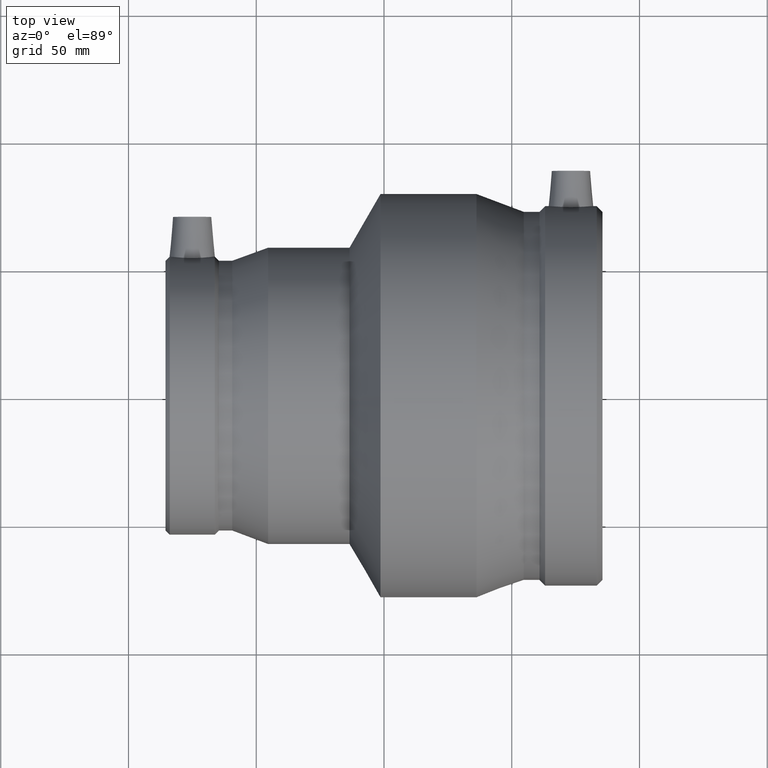
[diagram: clean part render]
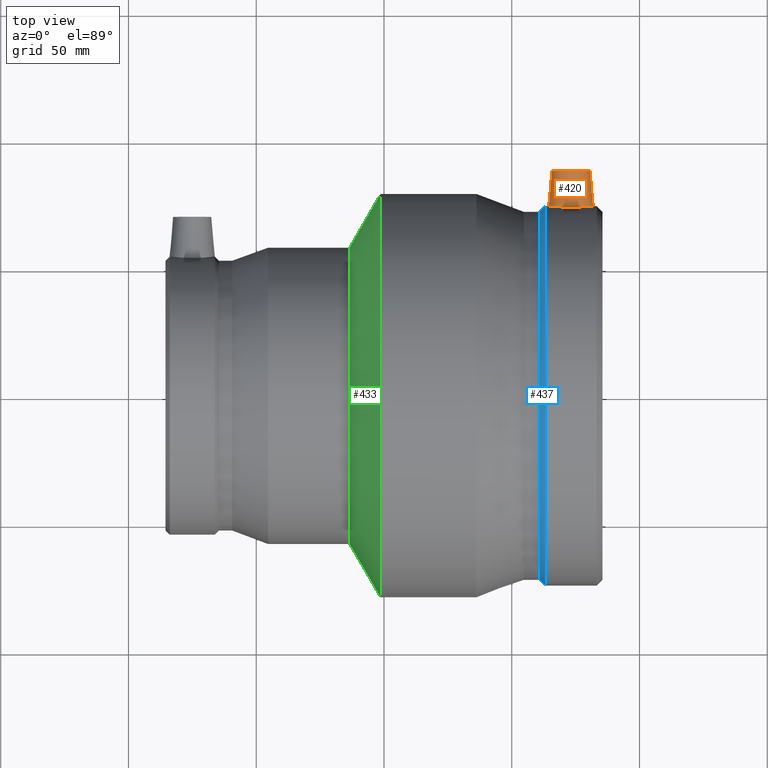
[diagram: same view with three faces highlighted in distinct colors, each labeled with its STEP entity id]
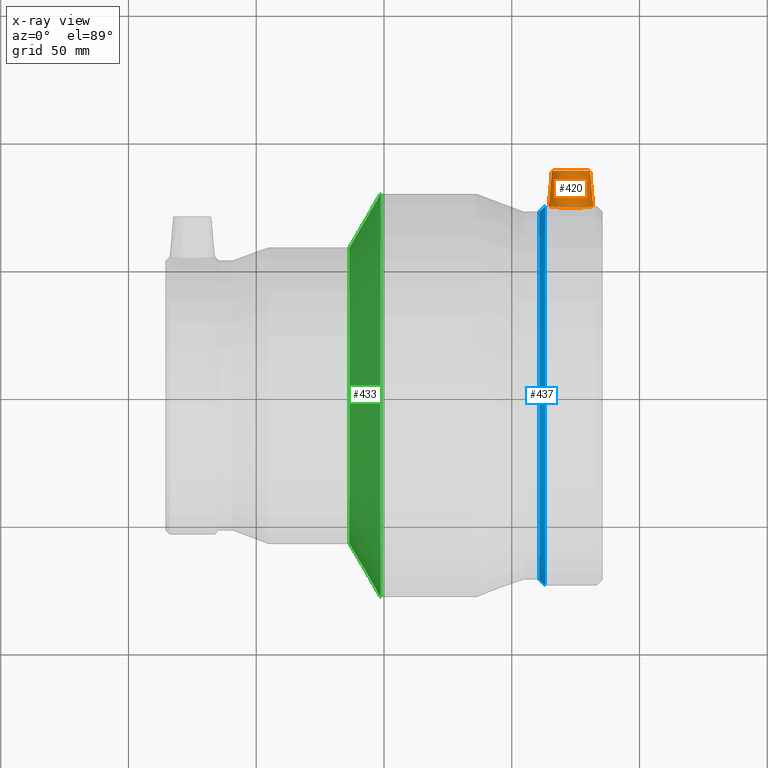
[diagram: x-ray of the same camera — body ghosted, the three highlighted faces saturated]
A machine part, top view with three faces highlighted in distinct colors.
The next image is the same camera in x-ray (body ghosted, the three faces saturated) — at least one of them is partly hidden behind the body in this view.
Their STEP definitions:

[orange] entity #420 — the highlighted conical surface has half-angle 5 deg.
#15=B_SPLINE_CURVE_WITH_KNOTS('',3,(#706,#707,#708,#709,#710,#711,#712,
#713,#714,#715,#716,#717,#718,#719,#720,#721,#722,#723,#724,#725,#726,#727,
#728,#729,#730,#731,#732,#733,#734,#735,#736,#737,#738,#739),
 .UNSPECIFIED.,.T.,.F.,(4,2,2,2,2,2,2,2,2,2,2,2,2,2,2,2,4),(0.,0.329174991896132,
0.658349983792263,0.987130054518636,1.31591012524501,1.64469019597138,1.97347026669776,
2.30264525859389,2.63182025049002,2.96099524238615,3.29017023428228,3.61895030500865,
3.94773037573503,4.2765104464614,4.60529051718777,4.93446550908391,5.26364050098004),
 .UNSPECIFIED.);
#20=CONICAL_SURFACE('',#467,7.5,5.);
#36=FACE_BOUND('',#134,.T.);
#90=FACE_OUTER_BOUND('',#133,.T.);
#133=EDGE_LOOP('',(#328));
#134=EDGE_LOOP('',(#329));
#204=CIRCLE('',#466,7.5);
#241=VERTEX_POINT('',#702);
#242=VERTEX_POINT('',#705);
#281=EDGE_CURVE('',#241,#241,#204,.T.);
#282=EDGE_CURVE('',#242,#242,#15,.T.);
#328=ORIENTED_EDGE('',*,*,#281,.T.);
#329=ORIENTED_EDGE('',*,*,#282,.F.);
#420=ADVANCED_FACE('',(#90,#36),#20,.T.);
#466=AXIS2_PLACEMENT_3D('',#703,#555,#556);
#467=AXIS2_PLACEMENT_3D('',#704,#557,#558);
#555=DIRECTION('center_axis',(0.,-1.,0.));
#556=DIRECTION('ref_axis',(1.,0.,0.));
#557=DIRECTION('center_axis',(0.,-1.,0.));
#558=DIRECTION('ref_axis',(1.,0.,0.));
#702=CARTESIAN_POINT('',(65.675,88.,9.18485099360515E-16));
#703=CARTESIAN_POINT('Origin',(73.175,88.,0.));
#704=CARTESIAN_POINT('Origin',(73.175,88.,0.));
#705=CARTESIAN_POINT('',(73.175,73.7430126135836,-8.74732477234353));
#706=CARTESIAN_POINT('Ctrl Pts',(73.175,73.7430126135836,-8.74732477234353));
#707=CARTESIAN_POINT('Ctrl Pts',(74.2722499729871,73.7430126135836,-8.74732477234353));
#708=CARTESIAN_POINT('Ctrl Pts',(75.4412476545416,73.7703153832784,-8.52594702412124));
#709=CARTESIAN_POINT('Ctrl Pts',(77.5884027008411,73.8684763735224,-7.62885314771746));
#710=CARTESIAN_POINT('Ctrl Pts',(78.5666649247249,73.9378745493633,-6.95322883510433));
#711=CARTESIAN_POINT('Ctrl Pts',(80.1083003148371,74.0675998765401,-5.39869169734548));
#712=CARTESIAN_POINT('Ctrl Pts',(80.7752863093855,74.1363877547324,-4.4162230965667));
#713=CARTESIAN_POINT('Ctrl Pts',(81.659696667975,74.2332629949682,-2.26487983722118));
#714=CARTESIAN_POINT('Ctrl Pts',(81.8770942368462,74.26,-1.09593356908791));
#715=CARTESIAN_POINT('Ctrl Pts',(81.8770942368462,74.26,1.09593356908791));
#716=CARTESIAN_POINT('Ctrl Pts',(81.659696667975,74.2332629949682,2.26487983722118));
#717=CARTESIAN_POINT('Ctrl Pts',(80.7752863093855,74.1363877547324,4.4162230965667));
#718=CARTESIAN_POINT('Ctrl Pts',(80.1083003148371,74.0675998765401,5.39869169734548));
#719=CARTESIAN_POINT('Ctrl Pts',(78.5666649247249,73.9378745493633,6.95322883510433));
#720=CARTESIAN_POINT('Ctrl Pts',(77.5884027008411,73.8684763735224,7.62885314771746));
#721=CARTESIAN_POINT('Ctrl Pts',(75.4412476545416,73.7703153832784,8.52594702412124));
#722=CARTESIAN_POINT('Ctrl Pts',(74.2722499729871,73.7430126135836,8.74732477234353));
#723=CARTESIAN_POINT('Ctrl Pts',(72.0777500270129,73.7430126135836,8.74732477234353));
#724=CARTESIAN_POINT('Ctrl Pts',(70.9087523454584,73.7703153832784,8.52594702412124));
#725=CARTESIAN_POINT('Ctrl Pts',(68.761597299159,73.8684763735224,7.62885314771746));
#726=CARTESIAN_POINT('Ctrl Pts',(67.7833350752751,73.9378745493633,6.95322883510433));
#727=CARTESIAN_POINT('Ctrl Pts',(66.241699685163,74.0675998765401,5.39869169734548));
#728=CARTESIAN_POINT('Ctrl Pts',(65.5747136906146,74.1363877547324,4.4162230965667));
#729=CARTESIAN_POINT('Ctrl Pts',(64.690303332025,74.2332629949682,2.26487983722117));
#730=CARTESIAN_POINT('Ctrl Pts',(64.4729057631538,74.26,1.09593356908791));
#731=CARTESIAN_POINT('Ctrl Pts',(64.4729057631538,74.26,-1.09593356908791));
#732=CARTESIAN_POINT('Ctrl Pts',(64.690303332025,74.2332629949682,-2.26487983722116));
#733=CARTESIAN_POINT('Ctrl Pts',(65.5747136906146,74.1363877547324,-4.41622309656669));
#734=CARTESIAN_POINT('Ctrl Pts',(66.241699685163,74.0675998765401,-5.39869169734548));
#735=CARTESIAN_POINT('Ctrl Pts',(67.7833350752751,73.9378745493633,-6.95322883510433));
#736=CARTESIAN_POINT('Ctrl Pts',(68.761597299159,73.8684763735224,-7.62885314771746));
#737=CARTESIAN_POINT('Ctrl Pts',(70.9087523454584,73.7703153832784,-8.52594702412124));
#738=CARTESIAN_POINT('Ctrl Pts',(72.0777500270129,73.7430126135836,-8.74732477234353));
#739=CARTESIAN_POINT('Ctrl Pts',(73.175,73.7430126135836,-8.74732477234353));

[blue] entity #437 — the highlighted conical surface has half-angle 45 deg.
#27=CONICAL_SURFACE('',#500,73.1461,45.);
#52=FACE_BOUND('',#167,.T.);
#107=FACE_OUTER_BOUND('',#166,.T.);
#166=EDGE_LOOP('',(#369));
#167=EDGE_LOOP('',(#370));
#220=CIRCLE('',#499,72.0322);
#221=CIRCLE('',#501,74.26);
#260=VERTEX_POINT('',#837);
#261=VERTEX_POINT('',#840);
#302=EDGE_CURVE('',#260,#260,#220,.T.);
#303=EDGE_CURVE('',#261,#261,#221,.T.);
#369=ORIENTED_EDGE('',*,*,#302,.T.);
#370=ORIENTED_EDGE('',*,*,#303,.F.);
#437=ADVANCED_FACE('',(#107,#52),#27,.T.);
#499=AXIS2_PLACEMENT_3D('',#838,#621,#622);
#500=AXIS2_PLACEMENT_3D('',#839,#623,#624);
#501=AXIS2_PLACEMENT_3D('',#841,#625,#626);
#621=DIRECTION('center_axis',(1.,0.,0.));
#622=DIRECTION('ref_axis',(0.,0.,-1.));
#623=DIRECTION('center_axis',(1.,0.,0.));
#624=DIRECTION('ref_axis',(0.,1.,0.));
#625=DIRECTION('center_axis',(1.,0.,0.));
#626=DIRECTION('ref_axis',(0.,0.,-1.));
#837=CARTESIAN_POINT('',(60.85,72.0322,0.));
#838=CARTESIAN_POINT('Origin',(60.85,0.,0.));
#839=CARTESIAN_POINT('Origin',(61.9639,0.,0.));
#840=CARTESIAN_POINT('',(63.0778,74.26,0.));
#841=CARTESIAN_POINT('Origin',(63.0778,0.,0.));

[green] entity #433 — the highlighted conical surface has half-angle 60 deg.
#25=CONICAL_SURFACE('',#492,68.5,60.0000000000001);
#48=FACE_BOUND('',#159,.T.);
#103=FACE_OUTER_BOUND('',#158,.T.);
#158=EDGE_LOOP('',(#361));
#159=EDGE_LOOP('',(#362));
#216=CIRCLE('',#491,58.);
#217=CIRCLE('',#493,79.);
#256=VERTEX_POINT('',#825);
#257=VERTEX_POINT('',#828);
#298=EDGE_CURVE('',#256,#256,#216,.T.);
#299=EDGE_CURVE('',#257,#257,#217,.T.);
#361=ORIENTED_EDGE('',*,*,#298,.T.);
#362=ORIENTED_EDGE('',*,*,#299,.F.);
#433=ADVANCED_FACE('',(#103,#48),#25,.T.);
#491=AXIS2_PLACEMENT_3D('',#826,#605,#606);
#492=AXIS2_PLACEMENT_3D('',#827,#607,#608);
#493=AXIS2_PLACEMENT_3D('',#829,#609,#610);
#605=DIRECTION('center_axis',(1.,0.,0.));
#606=DIRECTION('ref_axis',(0.,0.,-1.));
#607=DIRECTION('center_axis',(1.,0.,0.));
#608=DIRECTION('ref_axis',(0.,1.,0.));
#609=DIRECTION('center_axis',(1.,0.,0.));
#610=DIRECTION('ref_axis',(0.,0.,-1.));
#825=CARTESIAN_POINT('',(-13.5,58.,0.));
#826=CARTESIAN_POINT('Origin',(-13.5,0.,0.));
#827=CARTESIAN_POINT('Origin',(-7.43782217350894,0.,0.));
#828=CARTESIAN_POINT('',(-1.37564434701789,79.,0.));
#829=CARTESIAN_POINT('Origin',(-1.37564434701789,0.,0.));